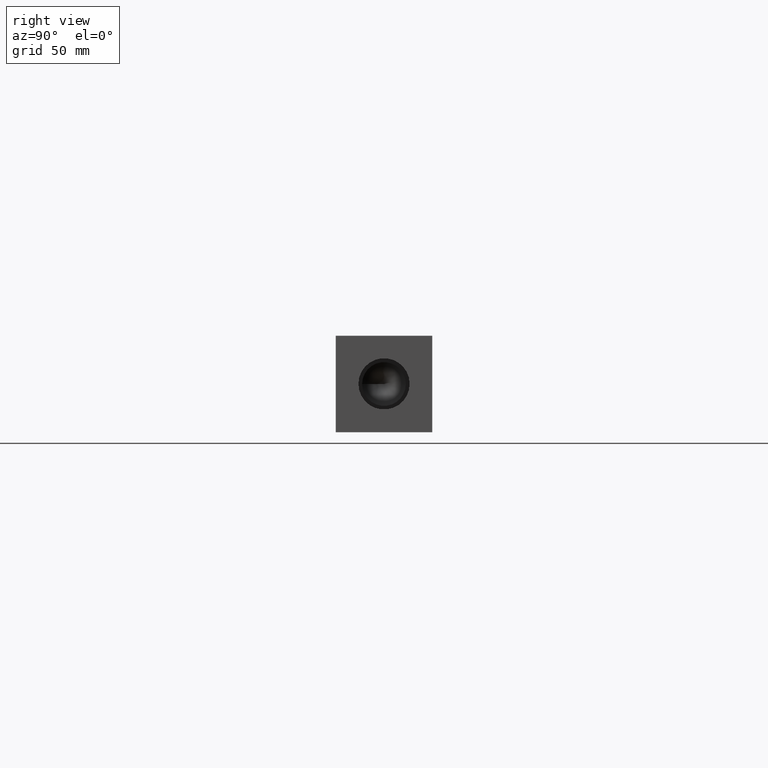
[diagram: clean part render]
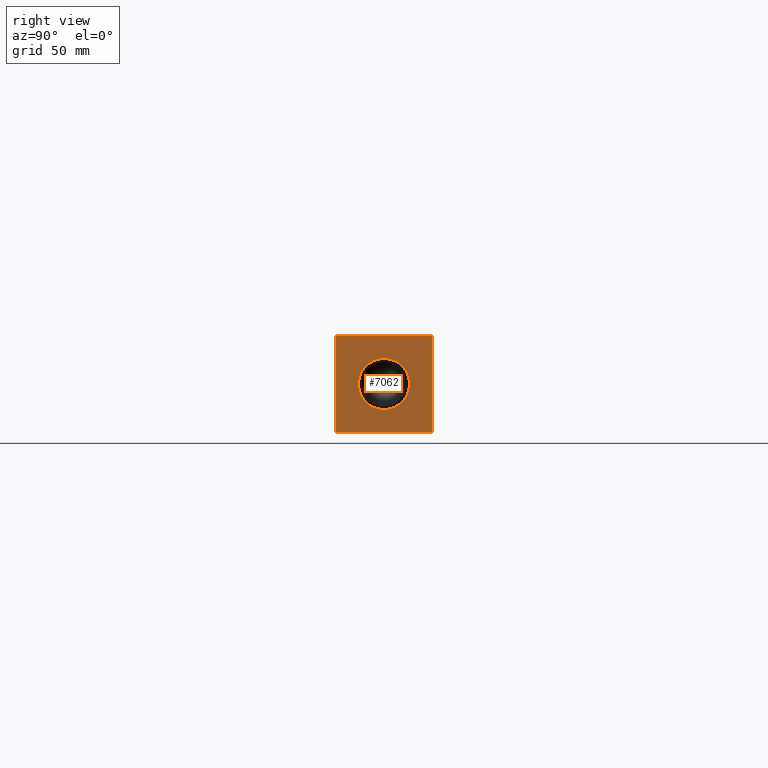
[diagram: same view with one face highlighted and labeled with its STEP entity id]
A machine part, right view. The second image highlights one B-rep face of the part: STEP entity #7062.
In plain terms, the highlighted planar face has unit normal (1, 0, 0).
Its self-contained STEP definition (entity closure, byte-faithful):
#127=CIRCLE('',#7392,13.462);
#128=CIRCLE('',#7393,13.462);
#188=FACE_BOUND('',#1174,.T.);
#401=PLANE('',#7408);
#761=FACE_OUTER_BOUND('',#1173,.T.);
#1173=EDGE_LOOP('',(#6267,#6268,#6269,#6270));
#1174=EDGE_LOOP('',(#6271,#6272));
#1417=LINE('',#11017,#2074);
#1837=LINE('',#12194,#2494);
#1838=LINE('',#12197,#2495);
#1839=LINE('',#12198,#2496);
#2074=VECTOR('',#7753,10.);
#2494=VECTOR('',#8723,10.);
#2495=VECTOR('',#8726,10.);
#2496=VECTOR('',#8727,10.);
#3023=VERTEX_POINT('',#11014);
#3024=VERTEX_POINT('',#11016);
#3366=VERTEX_POINT('',#12156);
#3367=VERTEX_POINT('',#12157);
#3378=VERTEX_POINT('',#12192);
#3379=VERTEX_POINT('',#12196);
#3825=EDGE_CURVE('',#3023,#3024,#1417,.T.);
#4329=EDGE_CURVE('',#3366,#3367,#127,.T.);
#4330=EDGE_CURVE('',#3367,#3366,#128,.T.);
#4347=EDGE_CURVE('',#3378,#3024,#1837,.T.);
#4348=EDGE_CURVE('',#3379,#3378,#1838,.T.);
#4349=EDGE_CURVE('',#3379,#3023,#1839,.T.);
#6267=ORIENTED_EDGE('',*,*,#4348,.T.);
#6268=ORIENTED_EDGE('',*,*,#4347,.T.);
#6269=ORIENTED_EDGE('',*,*,#3825,.F.);
#6270=ORIENTED_EDGE('',*,*,#4349,.F.);
#6271=ORIENTED_EDGE('',*,*,#4329,.T.);
#6272=ORIENTED_EDGE('',*,*,#4330,.T.);
#7062=ADVANCED_FACE('',(#761,#188),#401,.T.);
#7392=AXIS2_PLACEMENT_3D('',#12158,#8682,#8683);
#7393=AXIS2_PLACEMENT_3D('',#12159,#8684,#8685);
#7408=AXIS2_PLACEMENT_3D('',#12195,#8724,#8725);
#7753=DIRECTION('',(0.,1.,0.));
#8682=DIRECTION('center_axis',(-1.,0.,0.));
#8683=DIRECTION('ref_axis',(0.,1.,0.));
#8684=DIRECTION('center_axis',(-1.,0.,0.));
#8685=DIRECTION('ref_axis',(0.,1.,0.));
#8723=DIRECTION('',(0.,0.,1.));
#8724=DIRECTION('center_axis',(1.,0.,0.));
#8725=DIRECTION('ref_axis',(0.,1.,0.));
#8726=DIRECTION('',(0.,1.,0.));
#8727=DIRECTION('',(0.,0.,1.));
#11014=CARTESIAN_POINT('',(377.825,0.,50.8));
#11016=CARTESIAN_POINT('',(377.825,50.8,50.8));
#11017=CARTESIAN_POINT('',(377.825,0.,50.8));
#12156=CARTESIAN_POINT('',(377.825,38.862,25.4));
#12157=CARTESIAN_POINT('',(377.825,11.938,25.4));
#12158=CARTESIAN_POINT('Origin',(377.825,25.4,25.4));
#12159=CARTESIAN_POINT('Origin',(377.825,25.4,25.4));
#12192=CARTESIAN_POINT('',(377.825,50.8,0.));
#12194=CARTESIAN_POINT('',(377.825,50.8,0.));
#12195=CARTESIAN_POINT('Origin',(377.825,0.,0.));
#12196=CARTESIAN_POINT('',(377.825,0.,0.));
#12197=CARTESIAN_POINT('',(377.825,0.,0.));
#12198=CARTESIAN_POINT('',(377.825,0.,0.));